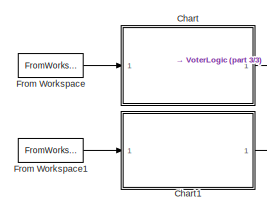
[diagram: root canvas - part 1/3, top left region]
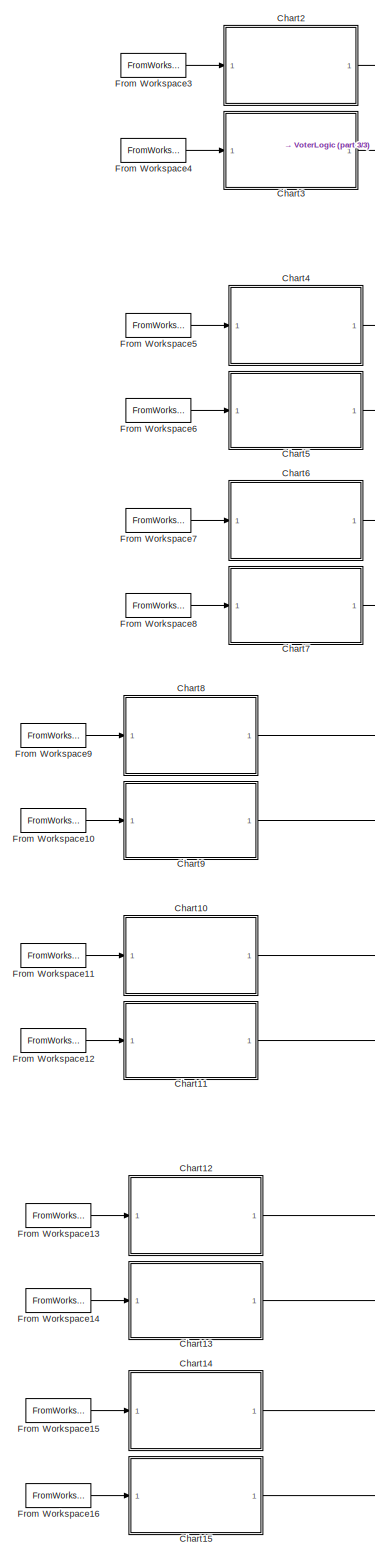
[diagram: root canvas - part 2/3, left side, full height]
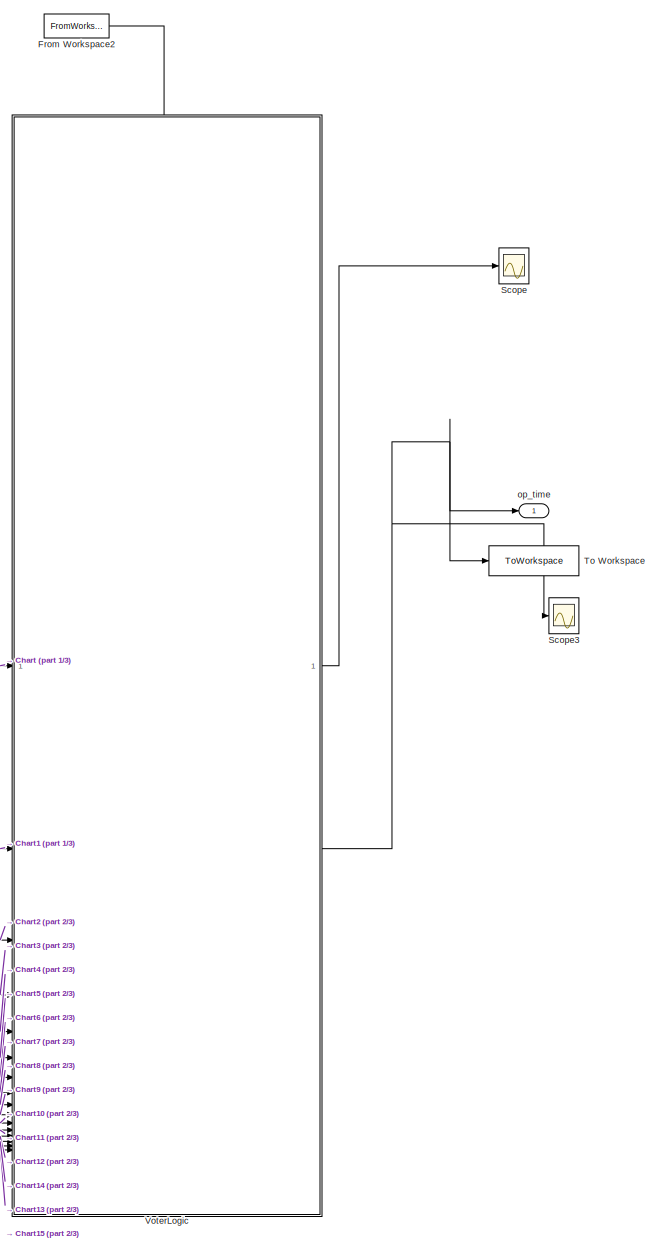
[diagram: root canvas - part 3/3, middle right region]
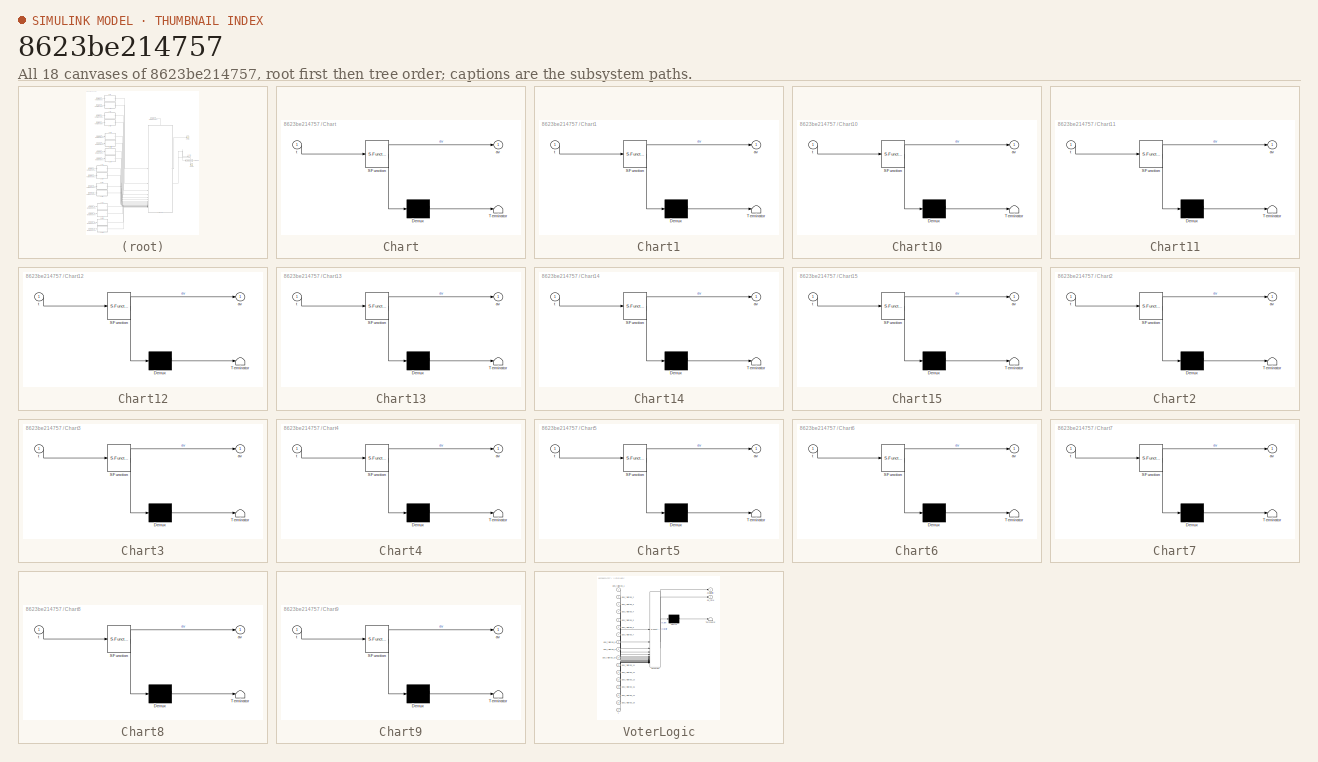
[diagram: thumbnail index - all 18 canvases of the model, root first then tree order]
MODEL slx_8623be214757
KIND model
CONFIG AbsTol = auto
CONFIG EnableMultiTasking = off
CONFIG FixedStep = auto
CONFIG MaxStep = auto
CONFIG MinStep = auto
CONFIG RelTol = 1e-3
CONFIG SampleTimeConstraint = Unconstrained
CONFIG SolverName = VariableStepAuto
CONFIG StartTime = 0.0
CONFIG StopTime = 100.0
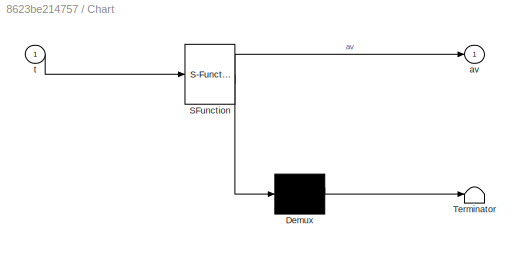
BLOCK [SubSystem] Chart
  ErrorFcn = Stateflow.Translate.translate
  PermitHierarchicalResolution = ExplicitOnly
  SFBlockType = Chart
  TreatAsAtomicUnit = on
BLOCK [Demux] Chart/ Demux 
  Outputs = 1
BLOCK [S-Function] Chart/ SFunction 
  EnableBusSupport = on
  FunctionName = sf_sfun
  PortCounts = [1 2]
  SFcnIsStateOwnerBlock = off
  SFunctionDeploymentMode = off
  Tag = Stateflow S-Function 1
BLOCK [Terminator] Chart/ Terminator 
BLOCK [Outport] Chart/av
BLOCK [Inport] Chart/t
BLOCK [SubSystem] Chart1
  ErrorFcn = Stateflow.Translate.translate
  PermitHierarchicalResolution = ExplicitOnly
  SFBlockType = Chart
  TreatAsAtomicUnit = on
BLOCK [Demux] Chart1/ Demux 
  Outputs = 1
BLOCK [S-Function] Chart1/ SFunction 
  EnableBusSupport = on
  FunctionName = sf_sfun
  PortCounts = [1 2]
  SFcnIsStateOwnerBlock = off
  SFunctionDeploymentMode = off
  Tag = Stateflow S-Function 2
BLOCK [Terminator] Chart1/ Terminator 
BLOCK [Outport] Chart1/av
BLOCK [Inport] Chart1/t
BLOCK [SubSystem] Chart10
  ErrorFcn = Stateflow.Translate.translate
  PermitHierarchicalResolution = ExplicitOnly
  SFBlockType = Chart
  TreatAsAtomicUnit = on
BLOCK [Demux] Chart10/ Demux 
  Outputs = 1
BLOCK [S-Function] Chart10/ SFunction 
  EnableBusSupport = on
  FunctionName = sf_sfun
  PortCounts = [1 2]
  SFcnIsStateOwnerBlock = off
  SFunctionDeploymentMode = off
  Tag = Stateflow S-Function 10
BLOCK [Terminator] Chart10/ Terminator 
BLOCK [Outport] Chart10/av
BLOCK [Inport] Chart10/t
BLOCK [SubSystem] Chart11
  ErrorFcn = Stateflow.Translate.translate
  PermitHierarchicalResolution = ExplicitOnly
  SFBlockType = Chart
  TreatAsAtomicUnit = on
BLOCK [Demux] Chart11/ Demux 
  Outputs = 1
BLOCK [S-Function] Chart11/ SFunction 
  EnableBusSupport = on
  FunctionName = sf_sfun
  PortCounts = [1 2]
  SFcnIsStateOwnerBlock = off
  SFunctionDeploymentMode = off
  Tag = Stateflow S-Function 11
BLOCK [Terminator] Chart11/ Terminator 
BLOCK [Outport] Chart11/av
BLOCK [Inport] Chart11/t
BLOCK [SubSystem] Chart12
  ErrorFcn = Stateflow.Translate.translate
  PermitHierarchicalResolution = ExplicitOnly
  SFBlockType = Chart
  TreatAsAtomicUnit = on
BLOCK [Demux] Chart12/ Demux 
  Outputs = 1
BLOCK [S-Function] Chart12/ SFunction 
  EnableBusSupport = on
  FunctionName = sf_sfun
  PortCounts = [1 2]
  SFcnIsStateOwnerBlock = off
  SFunctionDeploymentMode = off
  Tag = Stateflow S-Function 12
BLOCK [Terminator] Chart12/ Terminator 
BLOCK [Outport] Chart12/av
BLOCK [Inport] Chart12/t
BLOCK [SubSystem] Chart13
  ErrorFcn = Stateflow.Translate.translate
  PermitHierarchicalResolution = ExplicitOnly
  SFBlockType = Chart
  TreatAsAtomicUnit = on
BLOCK [Demux] Chart13/ Demux 
  Outputs = 1
BLOCK [S-Function] Chart13/ SFunction 
  EnableBusSupport = on
  FunctionName = sf_sfun
  PortCounts = [1 2]
  SFcnIsStateOwnerBlock = off
  SFunctionDeploymentMode = off
  Tag = Stateflow S-Function 13
BLOCK [Terminator] Chart13/ Terminator 
BLOCK [Outport] Chart13/av
BLOCK [Inport] Chart13/t
BLOCK [SubSystem] Chart14
  ErrorFcn = Stateflow.Translate.translate
  PermitHierarchicalResolution = ExplicitOnly
  SFBlockType = Chart
  TreatAsAtomicUnit = on
BLOCK [Demux] Chart14/ Demux 
  Outputs = 1
BLOCK [S-Function] Chart14/ SFunction 
  EnableBusSupport = on
  FunctionName = sf_sfun
  PortCounts = [1 2]
  SFcnIsStateOwnerBlock = off
  SFunctionDeploymentMode = off
  Tag = Stateflow S-Function 14
BLOCK [Terminator] Chart14/ Terminator 
BLOCK [Outport] Chart14/av
BLOCK [Inport] Chart14/t
BLOCK [SubSystem] Chart15
  ErrorFcn = Stateflow.Translate.translate
  PermitHierarchicalResolution = ExplicitOnly
  SFBlockType = Chart
  TreatAsAtomicUnit = on
BLOCK [Demux] Chart15/ Demux 
  Outputs = 1
BLOCK [S-Function] Chart15/ SFunction 
  EnableBusSupport = on
  FunctionName = sf_sfun
  PortCounts = [1 2]
  SFcnIsStateOwnerBlock = off
  SFunctionDeploymentMode = off
  Tag = Stateflow S-Function 15
BLOCK [Terminator] Chart15/ Terminator 
BLOCK [Outport] Chart15/av
BLOCK [Inport] Chart15/t
BLOCK [SubSystem] Chart2
  ErrorFcn = Stateflow.Translate.translate
  PermitHierarchicalResolution = ExplicitOnly
  SFBlockType = Chart
  TreatAsAtomicUnit = on
BLOCK [Demux] Chart2/ Demux 
  Outputs = 1
BLOCK [S-Function] Chart2/ SFunction 
  EnableBusSupport = on
  FunctionName = sf_sfun
  PortCounts = [1 2]
  SFcnIsStateOwnerBlock = off
  SFunctionDeploymentMode = off
  Tag = Stateflow S-Function 4
BLOCK [Terminator] Chart2/ Terminator 
BLOCK [Outport] Chart2/av
BLOCK [Inport] Chart2/t
BLOCK [SubSystem] Chart3
  ErrorFcn = Stateflow.Translate.translate
  PermitHierarchicalResolution = ExplicitOnly
  SFBlockType = Chart
  TreatAsAtomicUnit = on
BLOCK [Demux] Chart3/ Demux 
  Outputs = 1
BLOCK [S-Function] Chart3/ SFunction 
  EnableBusSupport = on
  FunctionName = sf_sfun
  PortCounts = [1 2]
  SFcnIsStateOwnerBlock = off
  SFunctionDeploymentMode = off
  Tag = Stateflow S-Function 5
BLOCK [Terminator] Chart3/ Terminator 
BLOCK [Outport] Chart3/av
BLOCK [Inport] Chart3/t
BLOCK [SubSystem] Chart4
  ErrorFcn = Stateflow.Translate.translate
  PermitHierarchicalResolution = ExplicitOnly
  SFBlockType = Chart
  TreatAsAtomicUnit = on
BLOCK [Demux] Chart4/ Demux 
  Outputs = 1
BLOCK [S-Function] Chart4/ SFunction 
  EnableBusSupport = on
  FunctionName = sf_sfun
  PortCounts = [1 2]
  SFcnIsStateOwnerBlock = off
  SFunctionDeploymentMode = off
  Tag = Stateflow S-Function 6
BLOCK [Terminator] Chart4/ Terminator 
BLOCK [Outport] Chart4/av
BLOCK [Inport] Chart4/t
BLOCK [SubSystem] Chart5
  ErrorFcn = Stateflow.Translate.translate
  PermitHierarchicalResolution = ExplicitOnly
  SFBlockType = Chart
  TreatAsAtomicUnit = on
BLOCK [Demux] Chart5/ Demux 
  Outputs = 1
BLOCK [S-Function] Chart5/ SFunction 
  EnableBusSupport = on
  FunctionName = sf_sfun
  PortCounts = [1 2]
  SFcnIsStateOwnerBlock = off
  SFunctionDeploymentMode = off
  Tag = Stateflow S-Function 7
BLOCK [Terminator] Chart5/ Terminator 
BLOCK [Outport] Chart5/av
BLOCK [Inport] Chart5/t
BLOCK [SubSystem] Chart6
  ErrorFcn = Stateflow.Translate.translate
  PermitHierarchicalResolution = ExplicitOnly
  SFBlockType = Chart
  TreatAsAtomicUnit = on
BLOCK [Demux] Chart6/ Demux 
  Outputs = 1
BLOCK [S-Function] Chart6/ SFunction 
  EnableBusSupport = on
  FunctionName = sf_sfun
  PortCounts = [1 2]
  SFcnIsStateOwnerBlock = off
  SFunctionDeploymentMode = off
  Tag = Stateflow S-Function 8
BLOCK [Terminator] Chart6/ Terminator 
BLOCK [Outport] Chart6/av
BLOCK [Inport] Chart6/t
BLOCK [SubSystem] Chart7
  ErrorFcn = Stateflow.Translate.translate
  PermitHierarchicalResolution = ExplicitOnly
  SFBlockType = Chart
  TreatAsAtomicUnit = on
BLOCK [Demux] Chart7/ Demux 
  Outputs = 1
BLOCK [S-Function] Chart7/ SFunction 
  EnableBusSupport = on
  FunctionName = sf_sfun
  PortCounts = [1 2]
  SFcnIsStateOwnerBlock = off
  SFunctionDeploymentMode = off
  Tag = Stateflow S-Function 9
BLOCK [Terminator] Chart7/ Terminator 
BLOCK [Outport] Chart7/av
BLOCK [Inport] Chart7/t
BLOCK [SubSystem] Chart8
  ErrorFcn = Stateflow.Translate.translate
  PermitHierarchicalResolution = ExplicitOnly
  SFBlockType = Chart
  TreatAsAtomicUnit = on
BLOCK [Demux] Chart8/ Demux 
  Outputs = 1
BLOCK [S-Function] Chart8/ SFunction 
  EnableBusSupport = on
  FunctionName = sf_sfun
  PortCounts = [1 2]
  SFcnIsStateOwnerBlock = off
  SFunctionDeploymentMode = off
  Tag = Stateflow S-Function 16
BLOCK [Terminator] Chart8/ Terminator 
BLOCK [Outport] Chart8/av
BLOCK [Inport] Chart8/t
BLOCK [SubSystem] Chart9
  ErrorFcn = Stateflow.Translate.translate
  PermitHierarchicalResolution = ExplicitOnly
  SFBlockType = Chart
  TreatAsAtomicUnit = on
BLOCK [Demux] Chart9/ Demux 
  Outputs = 1
BLOCK [S-Function] Chart9/ SFunction 
  EnableBusSupport = on
  FunctionName = sf_sfun
  PortCounts = [1 2]
  SFcnIsStateOwnerBlock = off
  SFunctionDeploymentMode = off
  Tag = Stateflow S-Function 17
BLOCK [Terminator] Chart9/ Terminator 
BLOCK [Outport] Chart9/av
BLOCK [Inport] Chart9/t
BLOCK [FromWorkspace] From Workspace
  SampleTime = -1
  VariableName = failtime_1
BLOCK [FromWorkspace] From Workspace1
  SampleTime = -1
  VariableName = failtime_2
BLOCK [FromWorkspace] From Workspace10
  SampleTime = -1
  VariableName = failtime_11
BLOCK [FromWorkspace] From Workspace11
  SampleTime = -1
  VariableName = failtime_12
BLOCK [FromWorkspace] From Workspace12
  SampleTime = -1
  VariableName = failtime_13
BLOCK [FromWorkspace] From Workspace13
  SampleTime = -1
  VariableName = failtime_14
BLOCK [FromWorkspace] From Workspace14
  SampleTime = -1
  VariableName = failtime_15
BLOCK [FromWorkspace] From Workspace15
  SampleTime = -1
  VariableName = failtime_16
BLOCK [FromWorkspace] From Workspace16
  SampleTime = -1
  VariableName = failtime_17
BLOCK [FromWorkspace] From Workspace2
  SampleTime = -1
  VariableName = failtime_3
BLOCK [FromWorkspace] From Workspace3
  SampleTime = -1
  VariableName = failtime_5
BLOCK [FromWorkspace] From Workspace4
  SampleTime = -1
  VariableName = failtime_4
BLOCK [FromWorkspace] From Workspace5
  SampleTime = -1
  VariableName = failtime_6
BLOCK [FromWorkspace] From Workspace6
  SampleTime = -1
  VariableName = failtime_7
BLOCK [FromWorkspace] From Workspace7
  SampleTime = -1
  VariableName = failtime_8
BLOCK [FromWorkspace] From Workspace8
  SampleTime = -1
  VariableName = failtime_9
BLOCK [FromWorkspace] From Workspace9
  SampleTime = -1
  VariableName = failtime_10
BLOCK [Scope] Scope
  Floating = off
  NumInputPorts = 1
  ScopeSpecificationString = Simulink.scopes.TimeScopeBlockCfg('CurrentConfiguration', extmgr.ConfigurationSet(extmgr.Configuration('Core','General UI',true),extmgr.Configuration('Core','Source UI',true),extmgr.Configuration('Sources','WiredSimulink',true),extmgr.Configuration('Visuals','Time Domain',true,'SerializedDisplays',{struct('MinYLimReal','-0.125','MaxYLimReal','1.125','YLabelReal','','MinYLimMag','0.00000','MaxYLimM...<+1361ch>
BLOCK [Scope] Scope3
  Floating = off
  NumInputPorts = 1
  ScopeSpecificationString = Simulink.scopes.TimeScopeBlockCfg('CurrentConfiguration', extmgr.ConfigurationSet(extmgr.Configuration('Core','General UI',true),extmgr.Configuration('Core','Source UI',true),extmgr.Configuration('Sources','WiredSimulink',true,'DataLoggingVariableName','ScopeData1'),extmgr.Configuration('Visuals','Time Domain',true,'SerializedDisplays',{struct('MinYLimReal','-2.97141','MaxYLimReal','26.7427','YLab...<+1412ch>
BLOCK [ToWorkspace] To Workspace
  FixptAsFi = on
  MaxDataPoints = inf
  SampleTime = -1
  SaveFormat = Timeseries
  VariableName = op_time
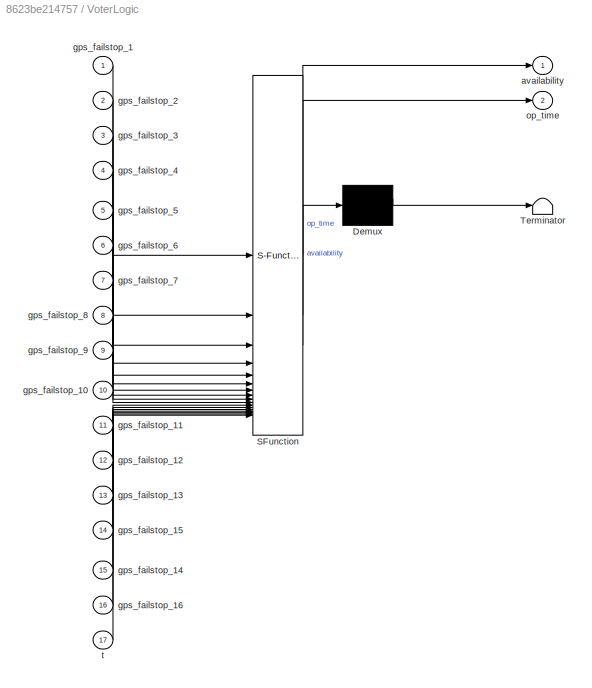
BLOCK [SubSystem] VoterLogic
  ErrorFcn = Stateflow.Translate.translate
  PermitHierarchicalResolution = ExplicitOnly
  PortSchema = {"entries":[{"content":{"sides":[{"content":{"connectorIds":["In1","In2","In3","In4","In5","In6","In7","In8","In9","In10","In11","In12","In13","In15","In14","In16"]},"type":"ConnectorPlacement.EquallySpacedRectSide","uuid":"b24c2d94-3c9d-4369-b965-d1338d6762d5"},{"content":{"connectorIds":["Out1","Out2"],"side":"RIGHT"},"type":"ConnectorPlacement.EquallySpacedRectSide","uuid":"5f96e1c0-a37a-4ed1-9...<+350ch>
  SFBlockType = Chart
  TreatAsAtomicUnit = on
BLOCK [Demux] VoterLogic/ Demux 
  Outputs = 1
BLOCK [S-Function] VoterLogic/ SFunction 
  EnableBusSupport = on
  FunctionName = sf_sfun
  PortCounts = [17 3]
  SFcnIsStateOwnerBlock = off
  SFunctionDeploymentMode = off
  Tag = Stateflow S-Function 3
BLOCK [Terminator] VoterLogic/ Terminator 
BLOCK [Outport] VoterLogic/availability
BLOCK [Inport] VoterLogic/gps_failstop_1
BLOCK [Inport] VoterLogic/gps_failstop_10
  Port = 10
BLOCK [Inport] VoterLogic/gps_failstop_11
  Port = 11
BLOCK [Inport] VoterLogic/gps_failstop_12
  Port = 12
BLOCK [Inport] VoterLogic/gps_failstop_13
  Port = 13
BLOCK [Inport] VoterLogic/gps_failstop_14
  Port = 15
BLOCK [Inport] VoterLogic/gps_failstop_15
  Port = 14
BLOCK [Inport] VoterLogic/gps_failstop_16
  Port = 16
BLOCK [Inport] VoterLogic/gps_failstop_2
  Port = 2
BLOCK [Inport] VoterLogic/gps_failstop_3
  Port = 3
BLOCK [Inport] VoterLogic/gps_failstop_4
  Port = 4
BLOCK [Inport] VoterLogic/gps_failstop_5
  Port = 5
BLOCK [Inport] VoterLogic/gps_failstop_6
  Port = 6
BLOCK [Inport] VoterLogic/gps_failstop_7
  Port = 7
BLOCK [Inport] VoterLogic/gps_failstop_8
  Port = 8
BLOCK [Inport] VoterLogic/gps_failstop_9
  Port = 9
BLOCK [Outport] VoterLogic/op_time
  Port = 2
BLOCK [Inport] VoterLogic/t
  Port = 17
BLOCK [Outport] op_time
LINE Chart10:1 -> VoterLogic:11
LINE Chart11:1 -> VoterLogic:12
LINE Chart12:1 -> VoterLogic:13
LINE Chart13:1 -> VoterLogic:15
LINE Chart14:1 -> VoterLogic:14
LINE Chart15:1 -> VoterLogic:16
LINE Chart1:1 -> VoterLogic:2
LINE Chart2:1 -> VoterLogic:3
LINE Chart3:1 -> VoterLogic:4
LINE Chart4:1 -> VoterLogic:5
LINE Chart5:1 -> VoterLogic:6
LINE Chart6:1 -> VoterLogic:7
LINE Chart7:1 -> VoterLogic:8
LINE Chart8:1 -> VoterLogic:9
LINE Chart9:1 -> VoterLogic:10
LINE Chart:1 -> VoterLogic:1
LINE From Workspace10:1 -> Chart9:1
LINE From Workspace11:1 -> Chart10:1
LINE From Workspace12:1 -> Chart11:1
LINE From Workspace13:1 -> Chart12:1
LINE From Workspace14:1 -> Chart13:1
LINE From Workspace15:1 -> Chart14:1
LINE From Workspace16:1 -> Chart15:1
LINE From Workspace1:1 -> Chart1:1
LINE From Workspace2:1 -> VoterLogic:17
LINE From Workspace3:1 -> Chart2:1
LINE From Workspace4:1 -> Chart3:1
LINE From Workspace5:1 -> Chart4:1
LINE From Workspace6:1 -> Chart5:1
LINE From Workspace7:1 -> Chart6:1
LINE From Workspace8:1 -> Chart7:1
LINE From Workspace9:1 -> Chart8:1
LINE From Workspace:1 -> Chart:1
LINE VoterLogic:1 -> Scope:1
NET VoterLogic:2 -> Scope3:1, To Workspace:1, op_time:1
note: NET lines group one-source signal fan-out (src -> all destinations, sorted); 1:1 wires keep LINE
CHART Chart1 states=2 transitions=2
  STATE_LABEL 'operational\nentry:\nav=1;'
  STATE_LABEL 'failstop\nentry:\nav=0;'
CHART VoterLogic states=3 transitions=4
  STATE_LABEL 'reg2'
  STATE_LABEL 'Operation\nexit:\nop_time=temporalCount(sec)'
  STATE_LABEL 'Failstop\nentry: availability=0;\n'
  STATE_LABEL '{availability=1}'
  STATE_LABEL 'after(t,sec)'
  STATE_LABEL '[gps_failstop_1==0 && gps_failstop_2==0 && gps_failstop_3==0 && gps_failstop_4==0 && gps_failstop_5==0 && gps_failstop_6==0 && gps_failstop_7==0 && gps_failstop_8==0 && gps_failstop_9==0 && gps_failstop_10==0 && gps_failstop_11==0 && gps_failstop_12==0 && gps_failstop_13==0 && gps_failstop_14==0 && gps_failstop_15==0 && gps_failstop_16==0]'
  STATE_LABEL 'Operation\nexit:\nop_time=temporalCount(sec)'
  STATE_LABEL 'Failstop\nentry: availability=0;\n'
CHART Chart2 states=2 transitions=2
  STATE_LABEL 'operational\nentry:\nav=1'
  STATE_LABEL 'failstop\nentry:\nav=0;'
CHART Chart3 states=2 transitions=2
  STATE_LABEL 'operational\nentry:\nav=1;'
  STATE_LABEL 'failstop\nentry:\nav=0;'
CHART Chart4 states=2 transitions=2
  STATE_LABEL 'operational\nentry:\nav=1'
  STATE_LABEL 'failstop\nentry:\nav=0;'
CHART Chart5 states=2 transitions=2
  STATE_LABEL 'operational\nentry:\nav=1;'
  STATE_LABEL 'failstop\nentry:\nav=0;'
CHART Chart6 states=2 transitions=2
  STATE_LABEL 'operational\nentry:\nav=1'
  STATE_LABEL 'failstop\nentry:\nav=0;'
CHART Chart7 states=2 transitions=2
  STATE_LABEL 'operational\nentry:\nav=1;'
  STATE_LABEL 'failstop\nentry:\nav=0;'
CHART Chart10 states=2 transitions=2
  STATE_LABEL 'operational\nentry:\nav=1'
  STATE_LABEL 'failstop\nentry:\nav=0;'
CHART Chart11 states=2 transitions=2
  STATE_LABEL 'operational\nentry:\nav=1;'
  STATE_LABEL 'failstop\nentry:\nav=0;'
CHART Chart12 states=2 transitions=2
  STATE_LABEL 'operational\nentry:\nav=1'
  STATE_LABEL 'failstop\nentry:\nav=0;'
CHART Chart13 states=2 transitions=2
  STATE_LABEL 'operational\nentry:\nav=1;'
  STATE_LABEL 'failstop\nentry:\nav=0;'
CHART Chart14 states=2 transitions=2
  STATE_LABEL 'operational\nentry:\nav=1'
  STATE_LABEL 'failstop\nentry:\nav=0;'
CHART Chart15 states=2 transitions=2
  STATE_LABEL 'operational\nentry:\nav=1;'
  STATE_LABEL 'failstop\nentry:\nav=0;'
CHART Chart8 states=2 transitions=2
  STATE_LABEL 'operational\nentry:\nav=1'
  STATE_LABEL 'failstop\nentry:\nav=0;'
CHART Chart9 states=2 transitions=2
  STATE_LABEL 'operational\nentry:\nav=1;'
  STATE_LABEL 'failstop\nentry:\nav=0;'
CHART Chart states=2 transitions=2
  STATE_LABEL 'operational\nentry:\nav=1'
  STATE_LABEL 'failstop\nentry:\nav=0;'
CHART  states=0 transitions=0
CHART  states=0 transitions=0
CHART  states=0 transitions=0
CHART  states=0 transitions=0
CHART  states=0 transitions=0
CHART  states=0 transitions=0
CHART  states=0 transitions=0
CHART  states=0 transitions=0
CHART  states=0 transitions=0
CHART  states=0 transitions=0
CHART  states=0 transitions=0
CHART  states=0 transitions=0
CHART  states=0 transitions=0
CHART  states=0 transitions=0
CHART  states=0 transitions=0
CHART  states=0 transitions=0
CHART  states=0 transitions=0
